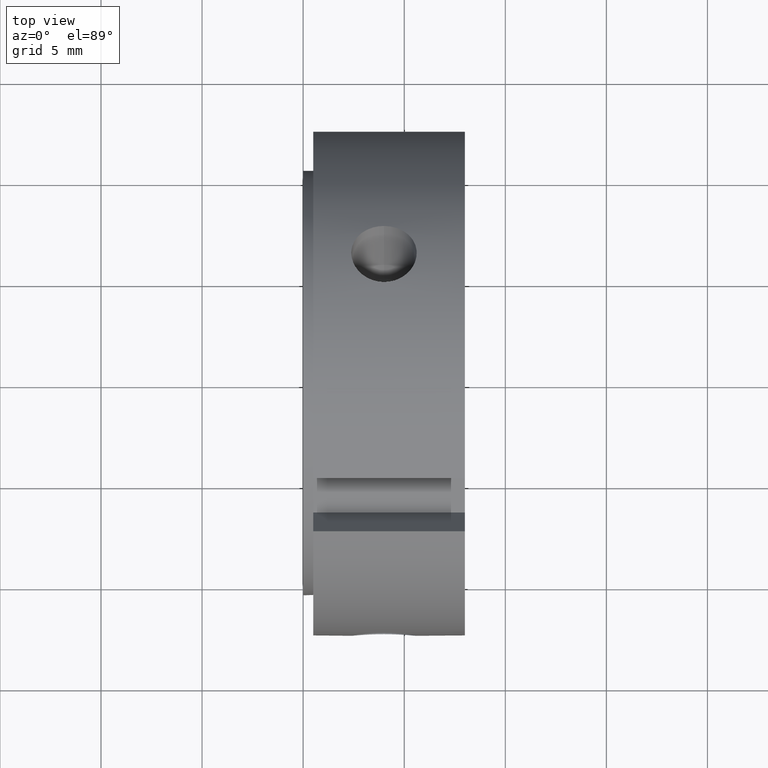
[diagram: clean part render]
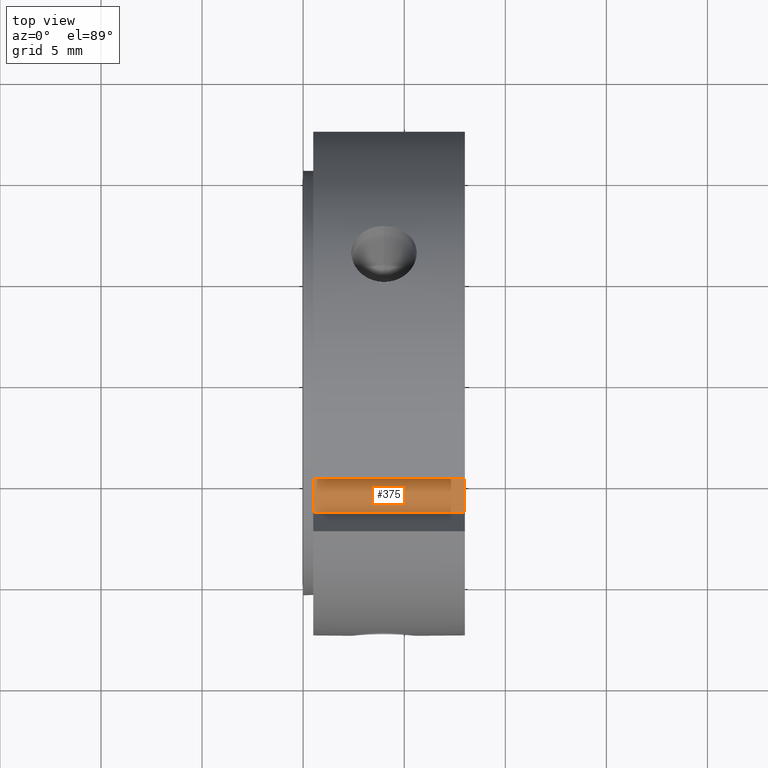
[diagram: same view with one face highlighted and labeled with its STEP entity id]
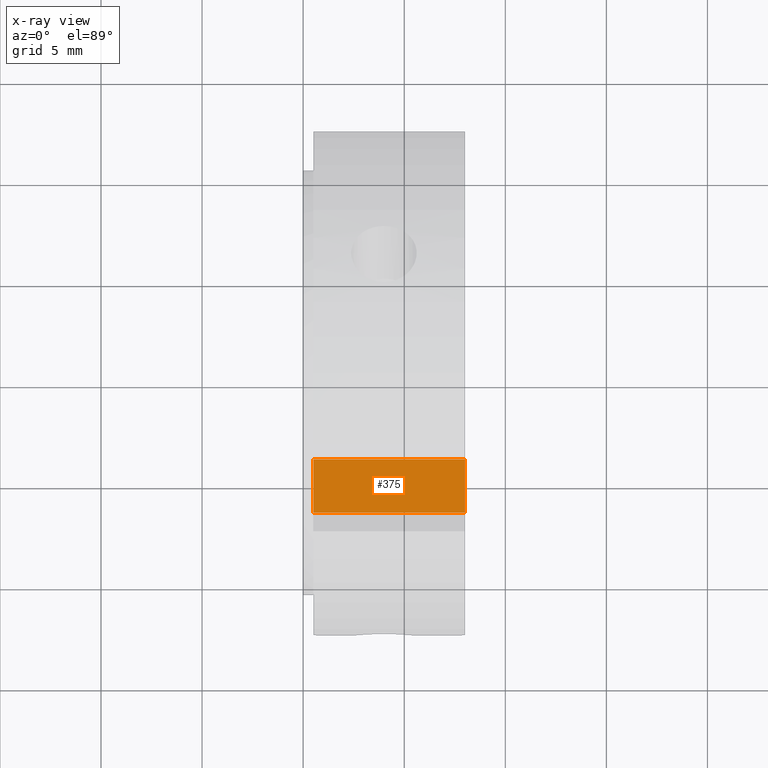
[diagram: x-ray of the same camera — body ghosted, the highlighted face saturated]
A machine part, top view. The second image highlights one B-rep face of the part: STEP entity #375.
The next image is the same camera in x-ray: the body ghosted, the highlighted face saturated — about 0% of this face is hidden behind the body in this view.
In plain terms, the highlighted planar face has unit normal (0, 0.5, -0.866).
Its self-contained STEP definition (entity closure, byte-faithful):
#271=CARTESIAN_POINT('',(0.499999999999998,-3.950961894323338,9.843266739736606));
#272=VERTEX_POINT('',#271);
#281=CARTESIAN_POINT('',(7.999999999999996,-3.950961894323338,9.843266739736606));
#282=VERTEX_POINT('',#281);
#283=CARTESIAN_POINT('',(7.999999999999996,-3.950961894323338,9.843266739736606));
#284=DIRECTION('',(-1.0,0.0,0.0));
#285=VECTOR('',#284,7.499999999999998);
#286=LINE('',#283,#285);
#287=EDGE_CURVE('',#282,#272,#286,.T.);
#313=CARTESIAN_POINT('',(0.499999999999998,-6.549038105676655,8.343266739736606));
#314=VERTEX_POINT('',#313);
#329=CARTESIAN_POINT('',(7.999999999999996,-6.549038105676655,8.343266739736606));
#330=VERTEX_POINT('',#329);
#337=CARTESIAN_POINT('',(7.999999999999996,-6.549038105676655,8.343266739736606));
#338=DIRECTION('',(-1.0,0.0,0.0));
#339=VECTOR('',#338,7.499999999999998);
#340=LINE('',#337,#339);
#341=EDGE_CURVE('',#330,#314,#340,.T.);
#346=CARTESIAN_POINT('',(7.999999999999996,-6.549038105676655,8.343266739736606));
#347=DIRECTION('',(0.0,0.500000000000000,-0.866025403784439));
#348=DIRECTION('',(0.0,0.866025403784439,0.500000000000000));
#349=AXIS2_PLACEMENT_3D('',#346,#347,#348);
#350=PLANE('',#349);
#351=CARTESIAN_POINT('',(0.499999999999998,-5.249999999999996,9.093266739736608));
#352=VERTEX_POINT('',#351);
#353=CARTESIAN_POINT('',(0.499999999999999,-6.549038105676658,8.343266739736608));
#354=DIRECTION('',(0.0,0.866025403784439,0.499999999999999));
#355=VECTOR('',#354,1.500000000000002);
#356=LINE('',#353,#355);
#357=EDGE_CURVE('',#314,#352,#356,.T.);
#358=ORIENTED_EDGE('',*,*,#357,.F.);
#359=ORIENTED_EDGE('',*,*,#341,.F.);
#360=CARTESIAN_POINT('',(7.999999999999996,-3.950961894323339,9.843266739736606));
#361=DIRECTION('',(0.0,-0.866025403784439,-0.500000000000000));
#362=VECTOR('',#361,3.000000000000001);
#363=LINE('',#360,#362);
#364=EDGE_CURVE('',#282,#330,#363,.T.);
#365=ORIENTED_EDGE('',*,*,#364,.F.);
#366=ORIENTED_EDGE('',*,*,#287,.T.);
#367=CARTESIAN_POINT('',(0.499999999999999,-5.249999999999997,9.093266739736608));
#368=DIRECTION('',(0.0,0.866025403784439,0.500000000000000));
#369=VECTOR('',#368,1.500000000000000);
#370=LINE('',#367,#369);
#371=EDGE_CURVE('',#352,#272,#370,.T.);
#372=ORIENTED_EDGE('',*,*,#371,.F.);
#373=EDGE_LOOP('',(#358,#359,#365,#366,#372));
#374=FACE_OUTER_BOUND('',#373,.T.);
#375=ADVANCED_FACE('',(#374),#350,.F.);